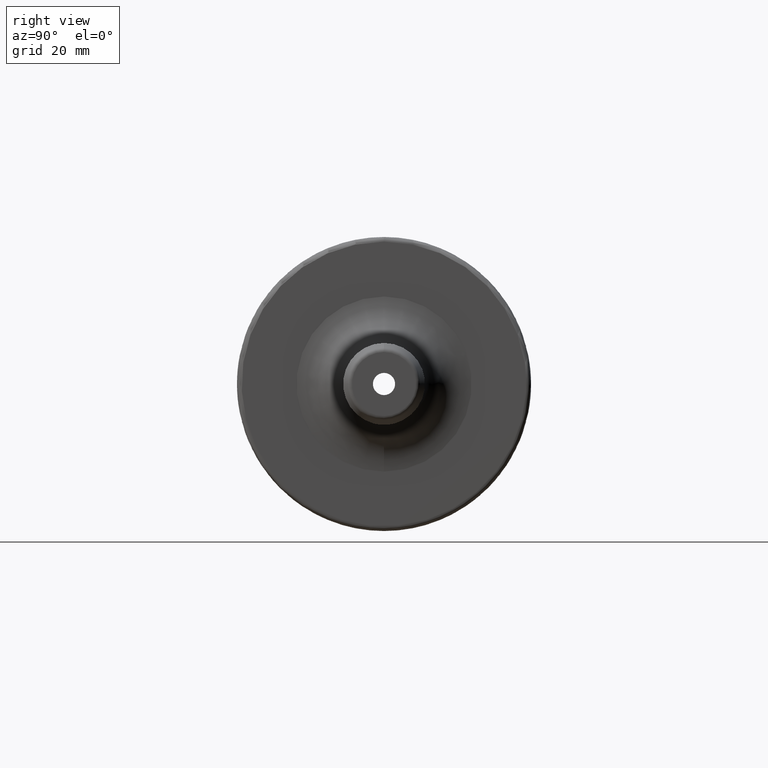
[diagram: clean part render]
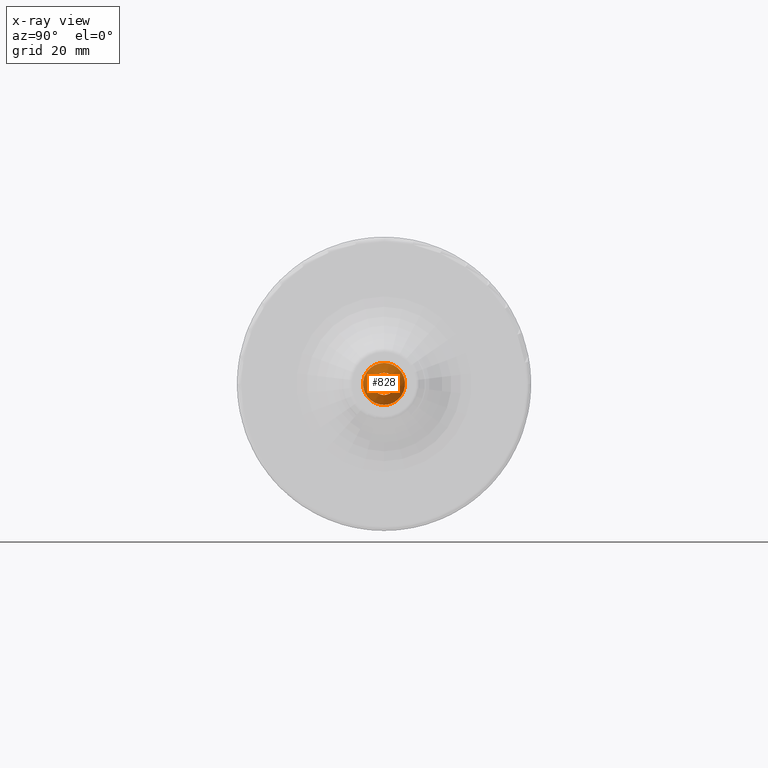
[diagram: x-ray — body ghosted, one internal face saturated and labeled with its STEP entity id]
A machine part, right view, then the same camera in x-ray: the body is ghosted and one INTERNAL B-rep face — a face not visible from any outside direction — is saturated and labeled: STEP entity #828.
In plain terms, the highlighted conical surface has half-angle 59 deg.
Its self-contained STEP definition (entity closure, byte-faithful):
#35=CONICAL_SURFACE('',#913,2.25,1.02974425867665);
#70=CIRCLE('',#911,2.38125);
#71=CIRCLE('',#912,2.38125);
#72=CIRCLE('',#914,4.5);
#141=FACE_OUTER_BOUND('',#196,.T.);
#196=EDGE_LOOP('',(#603,#604,#605,#606,#607));
#265=LINE('',#1516,#313);
#313=VECTOR('',#1050,2.25);
#368=VERTEX_POINT('',#1508);
#369=VERTEX_POINT('',#1510);
#370=VERTEX_POINT('',#1514);
#456=EDGE_CURVE('',#369,#368,#70,.T.);
#457=EDGE_CURVE('',#368,#369,#71,.T.);
#458=EDGE_CURVE('',#370,#370,#72,.T.);
#459=EDGE_CURVE('',#370,#369,#265,.T.);
#603=ORIENTED_EDGE('',*,*,#458,.T.);
#604=ORIENTED_EDGE('',*,*,#459,.T.);
#605=ORIENTED_EDGE('',*,*,#456,.T.);
#606=ORIENTED_EDGE('',*,*,#457,.T.);
#607=ORIENTED_EDGE('',*,*,#459,.F.);
#828=ADVANCED_FACE('',(#141),#35,.F.);
#911=AXIS2_PLACEMENT_3D('',#1511,#1042,#1043);
#912=AXIS2_PLACEMENT_3D('',#1512,#1044,#1045);
#913=AXIS2_PLACEMENT_3D('',#1513,#1046,#1047);
#914=AXIS2_PLACEMENT_3D('',#1515,#1048,#1049);
#1042=DIRECTION('center_axis',(1.,0.,0.));
#1043=DIRECTION('ref_axis',(0.,0.,-1.));
#1044=DIRECTION('center_axis',(1.,0.,0.));
#1045=DIRECTION('ref_axis',(0.,0.,-1.));
#1046=DIRECTION('center_axis',(-1.,0.,0.));
#1047=DIRECTION('ref_axis',(0.,0.,1.));
#1048=DIRECTION('center_axis',(-1.,0.,0.));
#1049=DIRECTION('ref_axis',(0.,0.,1.));
#1050=DIRECTION('',(0.515038074910054,1.04972719113862E-16,0.857167300702112));
#1508=CARTESIAN_POINT('',(43.5730734365646,-2.91619019046964E-16,2.38125));
#1510=CARTESIAN_POINT('',(43.5730734365646,-2.91619019046964E-16,-2.38125000000001));
#1511=CARTESIAN_POINT('Origin',(43.5730734365646,0.,0.));
#1512=CARTESIAN_POINT('Origin',(43.5730734365646,0.,0.));
#1513=CARTESIAN_POINT('Origin',(43.651936392812,0.,0.));
#1514=CARTESIAN_POINT('',(42.3,-5.51091059616309E-16,-4.5));
#1515=CARTESIAN_POINT('Origin',(42.3,0.,0.));
#1516=CARTESIAN_POINT('',(43.651936392812,-2.75545529808154E-16,-2.25));